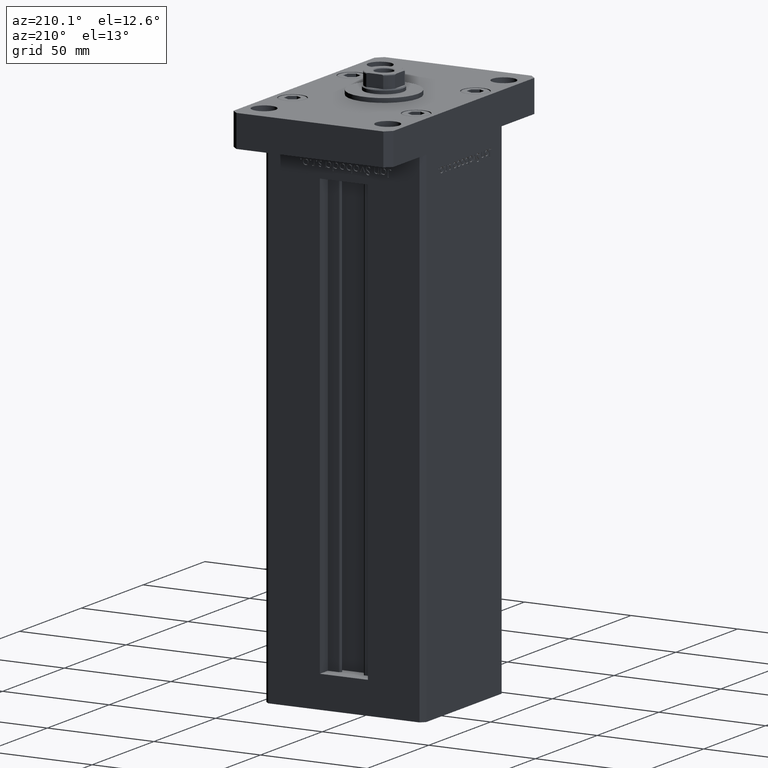
[diagram: clean part render]
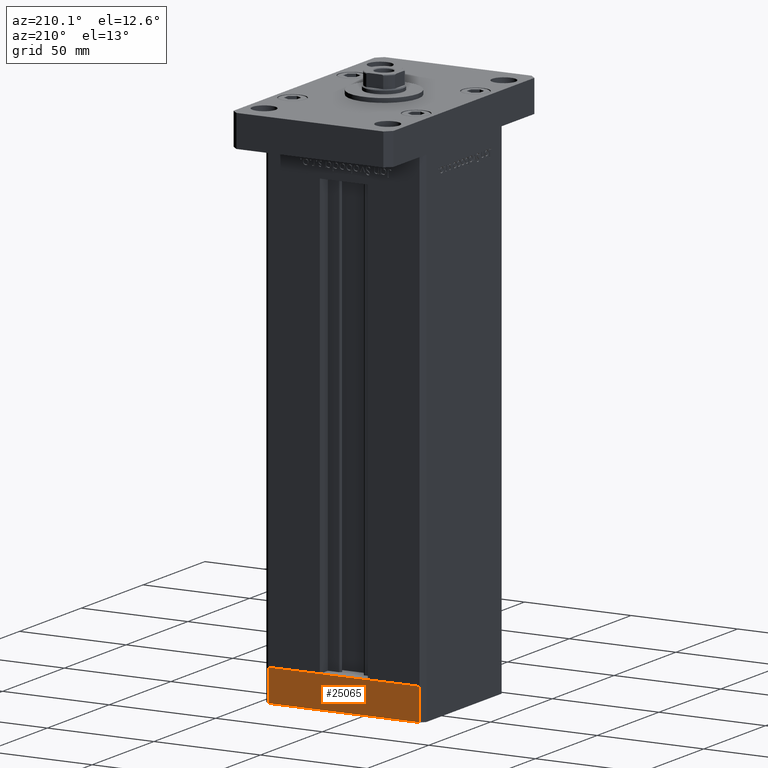
[diagram: same view with one face highlighted and labeled with its STEP entity id]
A machine part, auxiliary view. The second image highlights one B-rep face of the part: STEP entity #25065.
In plain terms, the highlighted planar face has unit normal (0, 1, 0).
Its self-contained STEP definition (entity closure, byte-faithful):
#341 = DIRECTION ( 'NONE',  ( -1.000000000000000000, -1.954618001100629052E-16, 0.000000000000000000 ) ) ;
#2212 = DIRECTION ( 'NONE',  ( 0.000000000000000000, 0.000000000000000000, 1.000000000000000000 ) ) ;
#2265 = ORIENTED_EDGE ( 'NONE', *, *, #17836, .T. ) ;
#2431 = CARTESIAN_POINT ( 'NONE',  ( 35.49999999999992184, 32.50000000000000711, -15.00000000000000000 ) ) ;
#4559 = LINE ( 'NONE', #8345, #17466 ) ;
#4677 = CARTESIAN_POINT ( 'NONE',  ( 35.49999999999992184, 32.50000000000000711, -15.00000000000000000 ) ) ;
#5009 = VERTEX_POINT ( 'NONE', #2431 ) ;
#5033 = VERTEX_POINT ( 'NONE', #35510 ) ;
#6075 = EDGE_CURVE ( 'NONE', #5009, #13770, #52342, .T. ) ;
#8058 = CARTESIAN_POINT ( 'NONE',  ( 35.49999999999992184, 32.50000000000000711, 0.000000000000000000 ) ) ;
#8345 = CARTESIAN_POINT ( 'NONE',  ( -35.50000000000002842, 32.49999999999999289, -15.00000000000000000 ) ) ;
#8979 = AXIS2_PLACEMENT_3D ( 'NONE', #4677, #49671, #341 ) ;
#13770 = VERTEX_POINT ( 'NONE', #25005 ) ;
#14945 = CARTESIAN_POINT ( 'NONE',  ( 35.49999999999992184, 32.50000000000000711, -15.00000000000000000 ) ) ;
#15613 = ORIENTED_EDGE ( 'NONE', *, *, #25276, .F. ) ;
#15875 = CARTESIAN_POINT ( 'NONE',  ( 35.49999999999992184, 32.50000000000000711, 0.000000000000000000 ) ) ;
#17466 = VECTOR ( 'NONE', #32775, 1000.000000000000000 ) ;
#17836 = EDGE_CURVE ( 'NONE', #13770, #5033, #4559, .T. ) ;
#24086 = VECTOR ( 'NONE', #39340, 1000.000000000000000 ) ;
#25005 = CARTESIAN_POINT ( 'NONE',  ( -35.50000000000002842, 32.49999999999999289, -15.00000000000000000 ) ) ;
#25065 = ADVANCED_FACE ( 'NONE', ( #41278 ), #32887, .T. ) ;
#25276 = EDGE_CURVE ( 'NONE', #5009, #52265, #28421, .T. ) ;
#25922 = EDGE_CURVE ( 'NONE', #52265, #5033, #32682, .T. ) ;
#26963 = ORIENTED_EDGE ( 'NONE', *, *, #25922, .F. ) ;
#27597 = ORIENTED_EDGE ( 'NONE', *, *, #6075, .T. ) ;
#28421 = LINE ( 'NONE', #44961, #41920 ) ;
#32682 = LINE ( 'NONE', #15875, #38492 ) ;
#32775 = DIRECTION ( 'NONE',  ( 0.000000000000000000, 0.000000000000000000, 1.000000000000000000 ) ) ;
#32887 = PLANE ( 'NONE',  #8979 ) ;
#34575 = EDGE_LOOP ( 'NONE', ( #26963, #15613, #27597, #2265 ) ) ;
#35510 = CARTESIAN_POINT ( 'NONE',  ( -35.50000000000002842, 32.49999999999999289, 0.000000000000000000 ) ) ;
#38492 = VECTOR ( 'NONE', #41611, 1000.000000000000000 ) ;
#39340 = DIRECTION ( 'NONE',  ( -1.000000000000000000, -1.954618001100629052E-16, 0.000000000000000000 ) ) ;
#41278 = FACE_OUTER_BOUND ( 'NONE', #34575, .T. ) ;
#41611 = DIRECTION ( 'NONE',  ( -1.000000000000000000, -1.954618001100629052E-16, 0.000000000000000000 ) ) ;
#41920 = VECTOR ( 'NONE', #2212, 1000.000000000000000 ) ;
#44961 = CARTESIAN_POINT ( 'NONE',  ( 35.49999999999992184, 32.50000000000000711, -15.00000000000000000 ) ) ;
#49671 = DIRECTION ( 'NONE',  ( -1.954618001100629052E-16, 1.000000000000000000, 0.000000000000000000 ) ) ;
#52265 = VERTEX_POINT ( 'NONE', #8058 ) ;
#52342 = LINE ( 'NONE', #14945, #24086 ) ;